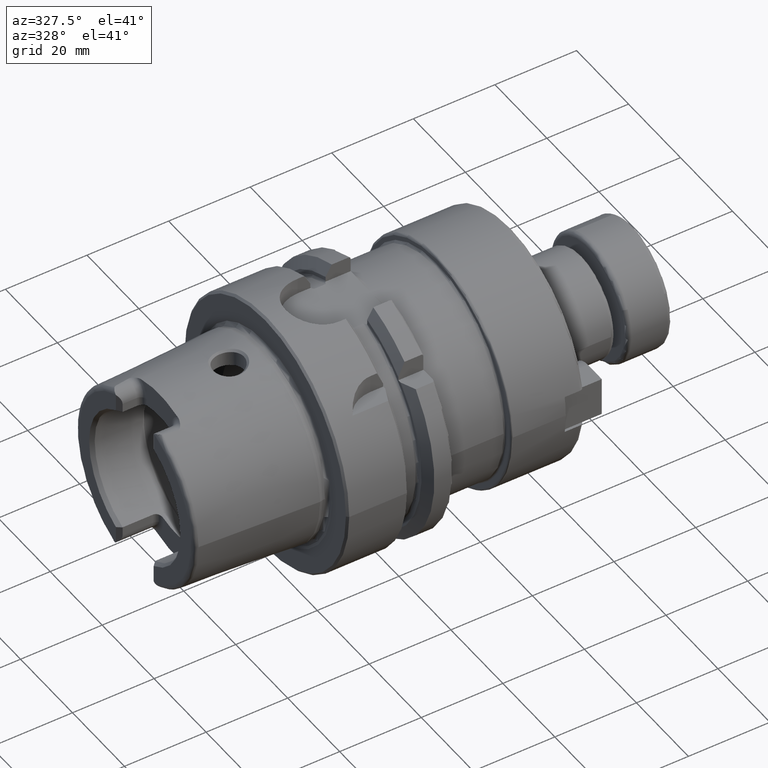
[diagram: clean part render]
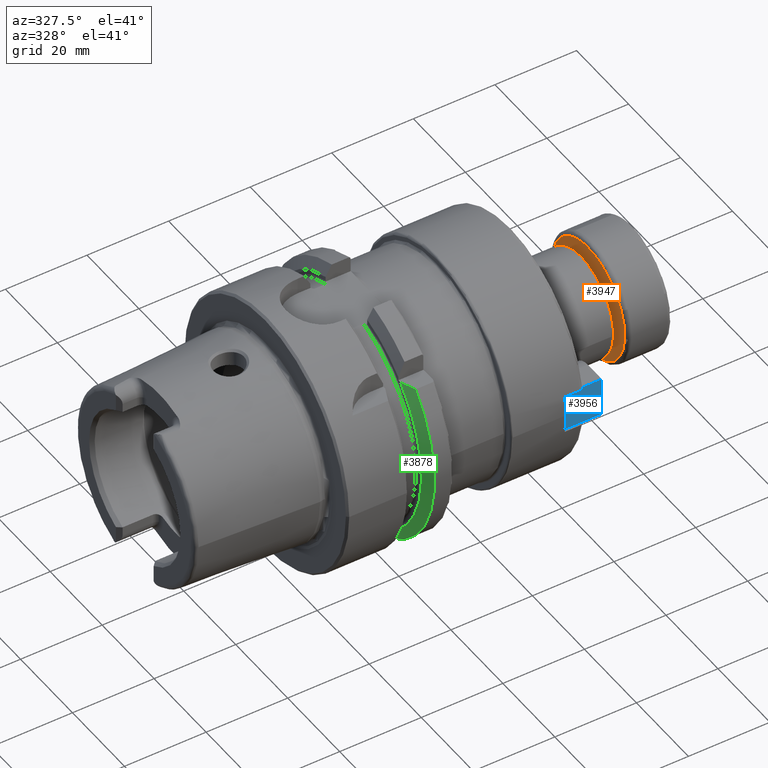
[diagram: same view with three faces highlighted in distinct colors, each labeled with its STEP entity id]
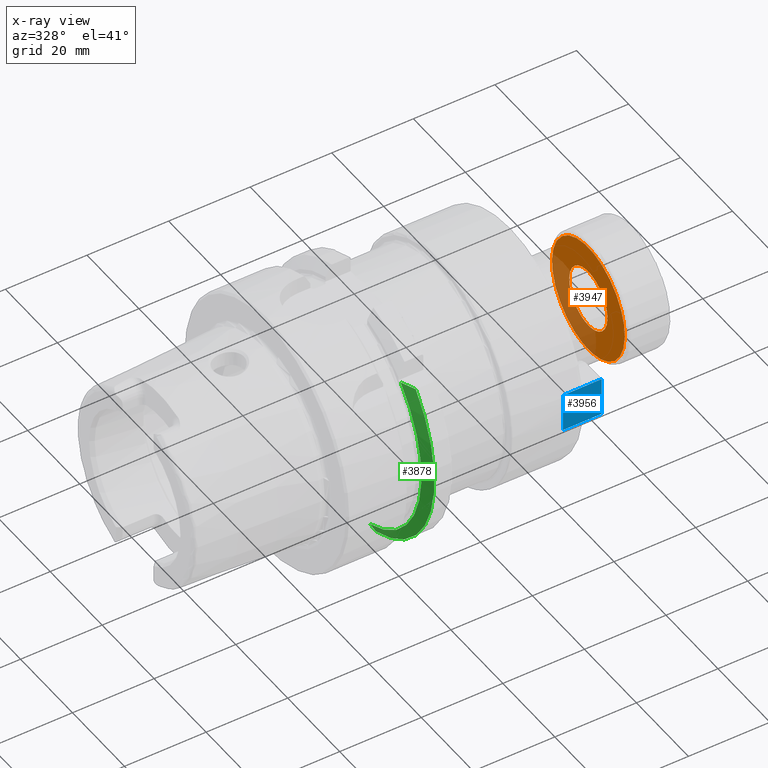
[diagram: x-ray of the same camera — body ghosted, the three highlighted faces saturated]
A machine part, auxiliary view with three faces highlighted in distinct colors.
The next image is the same camera in x-ray (body ghosted, the three faces saturated) — at least one of them is partly hidden behind the body in this view.
Their STEP definitions:

[orange] entity #3947 — the highlighted planar face has unit normal (-1, -0, -0).
#637=FACE_BOUND('',#1353,.T.);
#906=CIRCLE('',#4540,7.35);
#908=CIRCLE('',#4543,14.);
#1136=FACE_OUTER_BOUND('',#1352,.T.);
#1352=EDGE_LOOP('',(#3566));
#1353=EDGE_LOOP('',(#3567));
#2142=VERTEX_POINT('',#8073);
#2143=VERTEX_POINT('',#8077);
#2625=EDGE_CURVE('',#2142,#2142,#906,.T.);
#2627=EDGE_CURVE('',#2143,#2143,#908,.T.);
#3566=ORIENTED_EDGE('',*,*,#2627,.F.);
#3567=ORIENTED_EDGE('',*,*,#2625,.F.);
#3760=PLANE('',#4542);
#3947=ADVANCED_FACE('',(#1136,#637),#3760,.T.);
#4540=AXIS2_PLACEMENT_3D('',#8074,#5603,#5604);
#4542=AXIS2_PLACEMENT_3D('',#8076,#5607,#5608);
#4543=AXIS2_PLACEMENT_3D('',#8078,#5609,#5610);
#5603=DIRECTION('center_axis',(1.,0.,0.));
#5604=DIRECTION('ref_axis',(0.,-1.,1.83697019872103E-16));
#5607=DIRECTION('center_axis',(1.,0.,0.));
#5608=DIRECTION('ref_axis',(0.,0.,-1.));
#5609=DIRECTION('center_axis',(-1.,0.,0.));
#5610=DIRECTION('ref_axis',(0.,-1.,1.83697019872103E-16));
#8073=CARTESIAN_POINT('',(11.,-9.00115397373305E-16,7.35));
#8074=CARTESIAN_POINT('Origin',(11.,0.,0.));
#8076=CARTESIAN_POINT('Origin',(11.,6.35,0.));
#8077=CARTESIAN_POINT('',(11.,-1.71450551880629E-15,14.));
#8078=CARTESIAN_POINT('Origin',(11.,0.,0.));

[blue] entity #3956 — the highlighted planar face has unit normal (0, -1, -0).
#1145=FACE_OUTER_BOUND('',#1364,.T.);
#1364=EDGE_LOOP('',(#3605,#3606,#3607,#3608));
#1566=LINE('',#8165,#1767);
#1567=LINE('',#8168,#1768);
#1568=LINE('',#8170,#1769);
#1569=LINE('',#8171,#1770);
#1767=VECTOR('',#5677,10.);
#1768=VECTOR('',#5680,10.);
#1769=VECTOR('',#5681,10.);
#1770=VECTOR('',#5682,10.);
#2153=VERTEX_POINT('',#8158);
#2156=VERTEX_POINT('',#8163);
#2157=VERTEX_POINT('',#8167);
#2158=VERTEX_POINT('',#8169);
#2645=EDGE_CURVE('',#2153,#2156,#1566,.T.);
#2646=EDGE_CURVE('',#2157,#2153,#1567,.T.);
#2647=EDGE_CURVE('',#2158,#2156,#1568,.T.);
#2648=EDGE_CURVE('',#2157,#2158,#1569,.T.);
#3605=ORIENTED_EDGE('',*,*,#2646,.T.);
#3606=ORIENTED_EDGE('',*,*,#2645,.T.);
#3607=ORIENTED_EDGE('',*,*,#2647,.F.);
#3608=ORIENTED_EDGE('',*,*,#2648,.F.);
#3764=PLANE('',#4574);
#3956=ADVANCED_FACE('',(#1145),#3764,.T.);
#4574=AXIS2_PLACEMENT_3D('',#8166,#5678,#5679);
#5677=DIRECTION('',(0.,1.,0.));
#5678=DIRECTION('center_axis',(-2.33240131223772E-16,0.,-1.));
#5679=DIRECTION('ref_axis',(-1.,0.,2.33240131223772E-16));
#5680=DIRECTION('',(-1.,0.,2.33240131223772E-16));
#5681=DIRECTION('',(-1.,0.,2.33240131223772E-16));
#5682=DIRECTION('',(0.,1.,0.));
#8158=CARTESIAN_POINT('',(-4.76,0.,-5.44));
#8163=CARTESIAN_POINT('',(-4.76,9.52,-5.44));
#8165=CARTESIAN_POINT('',(-4.76,0.,-5.44));
#8166=CARTESIAN_POINT('Origin',(4.76,0.,-5.44));
#8167=CARTESIAN_POINT('',(4.76,0.,-5.44));
#8168=CARTESIAN_POINT('',(4.76,0.,-5.44));
#8169=CARTESIAN_POINT('',(4.76,9.52,-5.44));
#8170=CARTESIAN_POINT('',(4.76,9.52,-5.44));
#8171=CARTESIAN_POINT('',(4.76,0.,-5.44));

[green] entity #3878 — the highlighted conical surface has half-angle 60 deg.
#553=(
BOUNDED_CURVE()
B_SPLINE_CURVE(2,(#7080,#7081,#7082),.UNSPECIFIED.,.F.,.F.)
B_SPLINE_CURVE_WITH_KNOTS((3,3),(0.,0.378858277140999),.UNSPECIFIED.)
CURVE()
GEOMETRIC_REPRESENTATION_ITEM()
RATIONAL_B_SPLINE_CURVE((1.,1.00166199353854,1.))
REPRESENTATION_ITEM('')
);
#559=(
BOUNDED_CURVE()
B_SPLINE_CURVE(2,(#7220,#7221,#7222),.UNSPECIFIED.,.F.,.F.)
B_SPLINE_CURVE_WITH_KNOTS((3,3),(0.,0.311314369989023),.UNSPECIFIED.)
CURVE()
GEOMETRIC_REPRESENTATION_ITEM()
RATIONAL_B_SPLINE_CURVE((1.,1.00102053193598,1.))
REPRESENTATION_ITEM('')
);
#796=CIRCLE('',#4330,28.8975952641916);
#810=CIRCLE('',#4363,31.5);
#954=CONICAL_SURFACE('',#4370,30.1987976320958,1.0471975511966);
#1067=FACE_OUTER_BOUND('',#1278,.T.);
#1278=EDGE_LOOP('',(#3218,#3219,#3220,#3221));
#2014=VERTEX_POINT('',#7076);
#2016=VERTEX_POINT('',#7079);
#2038=VERTEX_POINT('',#7176);
#2043=VERTEX_POINT('',#7218);
#2406=EDGE_CURVE('',#2016,#2014,#553,.T.);
#2436=EDGE_CURVE('',#2014,#2038,#796,.T.);
#2446=EDGE_CURVE('',#2038,#2043,#559,.T.);
#2493=EDGE_CURVE('',#2016,#2043,#810,.T.);
#3218=ORIENTED_EDGE('',*,*,#2406,.T.);
#3219=ORIENTED_EDGE('',*,*,#2436,.T.);
#3220=ORIENTED_EDGE('',*,*,#2446,.T.);
#3221=ORIENTED_EDGE('',*,*,#2493,.F.);
#3878=ADVANCED_FACE('',(#1067),#954,.T.);
#4330=AXIS2_PLACEMENT_3D('',#7178,#5108,#5109);
#4363=AXIS2_PLACEMENT_3D('',#7430,#5194,#5195);
#4370=AXIS2_PLACEMENT_3D('',#7445,#5210,#5211);
#5108=DIRECTION('center_axis',(1.,0.,0.));
#5109=DIRECTION('ref_axis',(0.,0.,-1.));
#5194=DIRECTION('center_axis',(1.,0.,0.));
#5195=DIRECTION('ref_axis',(0.,0.,-1.));
#5210=DIRECTION('center_axis',(1.,0.,0.));
#5211=DIRECTION('ref_axis',(0.,-0.966819045705046,-0.255462194584608));
#7076=CARTESIAN_POINT('',(19.875,-20.8583559288126,20.));
#7079=CARTESIAN_POINT('',(21.3774990747593,-24.3361870472759,20.));
#7080=CARTESIAN_POINT('Ctrl Pts',(21.3774990747593,-24.3361870472759,20.));
#7081=CARTESIAN_POINT('Ctrl Pts',(20.5684390397668,-22.5223452916166,20.));
#7082=CARTESIAN_POINT('Ctrl Pts',(19.875,-20.8583559288126,20.));
#7176=CARTESIAN_POINT('',(19.875,-9.,-27.4603534582684));
#7178=CARTESIAN_POINT('Origin',(19.875,0.,0.));
#7218=CARTESIAN_POINT('',(21.3774990747593,-9.,-30.1869176962472));
#7220=CARTESIAN_POINT('Ctrl Pts',(19.875,-9.,-27.4603534582684));
#7221=CARTESIAN_POINT('Ctrl Pts',(20.5907174110267,-9.,-28.7648946319029));
#7222=CARTESIAN_POINT('Ctrl Pts',(21.3774990747593,-9.,-30.1869176962472));
#7430=CARTESIAN_POINT('Origin',(21.3774990747593,0.,0.));
#7445=CARTESIAN_POINT('Origin',(20.6262495373797,0.,0.));